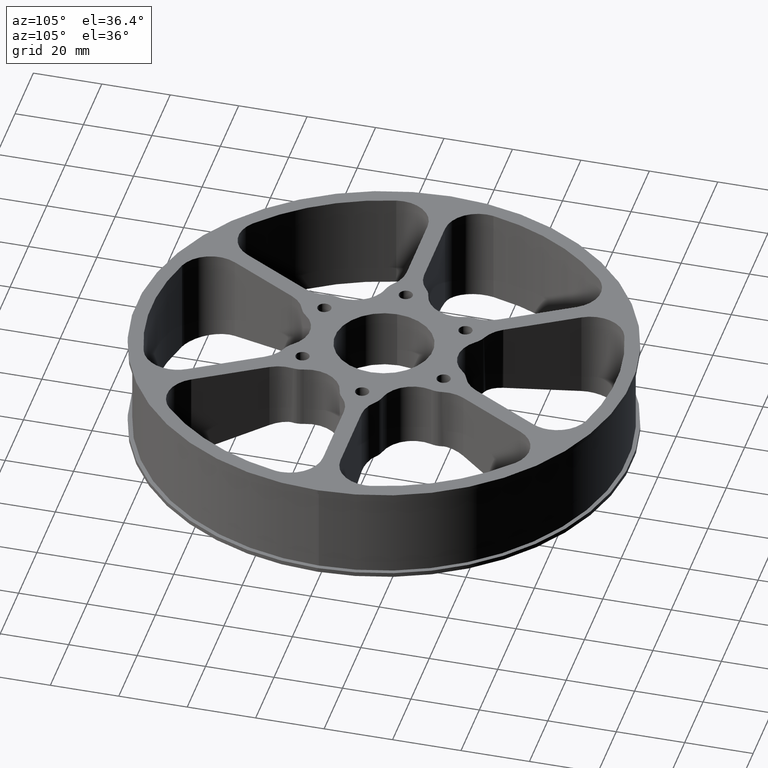
[diagram: clean part render]
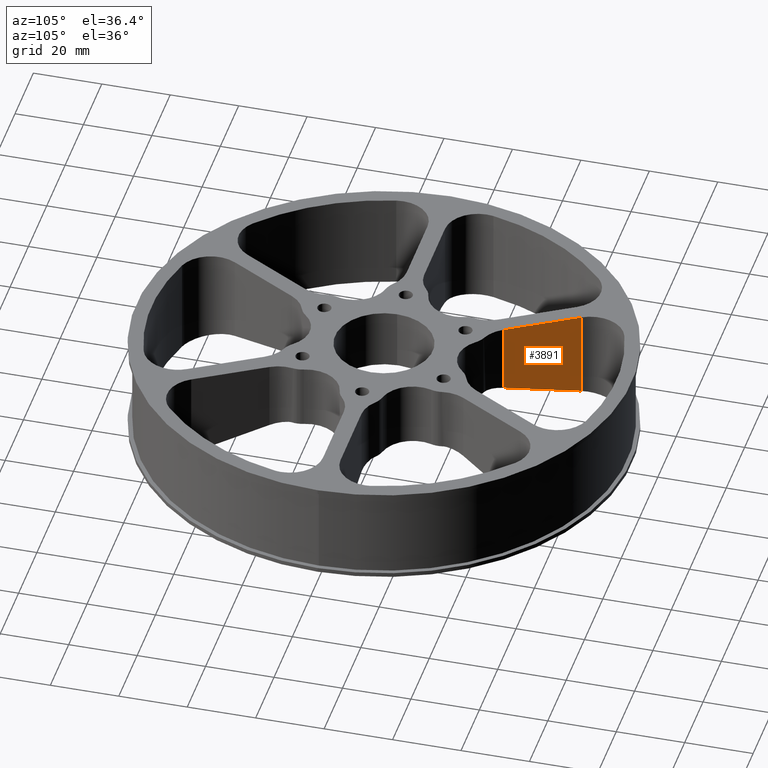
[diagram: same view with one face highlighted and labeled with its STEP entity id]
A machine part, auxiliary view. The second image highlights one B-rep face of the part: STEP entity #3891.
In plain terms, the highlighted planar face has unit normal (-0.866, -0.5, 0).
Its self-contained STEP definition (entity closure, byte-faithful):
#65 = ORIENTED_EDGE ( 'NONE', *, *, #1708, .T. ) ;
#82 = CARTESIAN_POINT ( 'NONE',  ( -0.5861695172525729358, 1.215275385729623014, 1.125000000000000000 ) ) ;
#330 = EDGE_CURVE ( 'NONE', #1872, #1020, #1961, .T. ) ;
#436 = CARTESIAN_POINT ( 'NONE',  ( -1.249962553434758483, 2.364998650107618339, 0.0000000000000000000 ) ) ;
#483 = PLANE ( 'NONE',  #3758 ) ;
#557 = VECTOR ( 'NONE', #3854, 39.37007874015748143 ) ;
#687 = DIRECTION ( 'NONE',  ( 0.4999999999999855671, -0.8660254037844469233, 0.0000000000000000000 ) ) ;
#732 = B_SPLINE_CURVE_WITH_KNOTS ( 'NONE', 3,
 ( #3164, #871, #4134, #2203 ),
 .UNSPECIFIED., .F., .F.,
 ( 4, 4 ),
 ( 0.01120379814011731277, 0.03467888712090324427 ),
 .UNSPECIFIED. ) ;
#767 = CARTESIAN_POINT ( 'NONE',  ( -0.5861695172525729358, 1.215275385729623014, 0.0000000000000000000 ) ) ;
#871 = CARTESIAN_POINT ( 'NONE',  ( -0.8857410842204423984, 1.734148560221015156, 0.1809588936208282872 ) ) ;
#976 = ORIENTED_EDGE ( 'NONE', *, *, #1886, .T. ) ;
#1012 = CARTESIAN_POINT ( 'NONE',  ( -1.249962553434758483, 2.364998650107618339, 1.125000000000000000 ) ) ;
#1020 = VERTEX_POINT ( 'NONE', #82 ) ;
#1032 = VECTOR ( 'NONE', #1102, 39.37007874015748143 ) ;
#1102 = DIRECTION ( 'NONE',  ( -0.0000000000000000000, -0.0000000000000000000, 1.000000000000000000 ) ) ;
#1403 = CARTESIAN_POINT ( 'NONE',  ( -1.035518776592196488, 1.993571133249324667, 0.1090217662803022319 ) ) ;
#1429 = CARTESIAN_POINT ( 'NONE',  ( -0.5861695172525729358, 1.215275385729623014, 0.3246983252277151899 ) ) ;
#1532 = VECTOR ( 'NONE', #687, 39.37007874015748854 ) ;
#1533 = EDGE_CURVE ( 'NONE', #2976, #1872, #732, .T. ) ;
#1708 = EDGE_CURVE ( 'NONE', #1718, #1020, #2597, .T. ) ;
#1718 = VERTEX_POINT ( 'NONE', #2947 ) ;
#1872 = VERTEX_POINT ( 'NONE', #1429 ) ;
#1886 = EDGE_CURVE ( 'NONE', #2976, #1718, #2840, .T. ) ;
#1943 = DIRECTION ( 'NONE',  ( -0.8660254037844469233, -0.4999999999999856781, 0.0000000000000000000 ) ) ;
#1961 = LINE ( 'NONE', #767, #557 ) ;
#2203 = CARTESIAN_POINT ( 'NONE',  ( -0.5861695172525729358, 1.215275385729623014, 0.3246983252277151899 ) ) ;
#2348 = EDGE_LOOP ( 'NONE', ( #3335, #976, #65, #3322 ) ) ;
#2597 = LINE ( 'NONE', #1012, #1532 ) ;
#2725 = FACE_OUTER_BOUND ( 'NONE', #2348, .T. ) ;
#2840 = LINE ( 'NONE', #3363, #1032 ) ;
#2947 = CARTESIAN_POINT ( 'NONE',  ( -1.035518776592196710, 1.993571133249324667, 1.125000000000000000 ) ) ;
#2976 = VERTEX_POINT ( 'NONE', #1403 ) ;
#3164 = CARTESIAN_POINT ( 'NONE',  ( -1.035518776592196488, 1.993571133249324667, 0.1090217662803022319 ) ) ;
#3322 = ORIENTED_EDGE ( 'NONE', *, *, #330, .F. ) ;
#3335 = ORIENTED_EDGE ( 'NONE', *, *, #1533, .F. ) ;
#3363 = CARTESIAN_POINT ( 'NONE',  ( -1.035518776592196488, 1.993571133249324667, 1.125000000000000000 ) ) ;
#3758 = AXIS2_PLACEMENT_3D ( 'NONE', #436, #1943, #3890 ) ;
#3854 = DIRECTION ( 'NONE',  ( -0.0000000000000000000, -0.0000000000000000000, 1.000000000000000000 ) ) ;
#3890 = DIRECTION ( 'NONE',  ( 0.4999999999999856781, -0.8660254037844469233, 0.0000000000000000000 ) ) ;
#3891 = ADVANCED_FACE ( 'NONE', ( #2725 ), #483, .F. ) ;
#4134 = CARTESIAN_POINT ( 'NONE',  ( -0.7359615855354594283, 1.474722858566418715, 0.2528809715653635437 ) ) ;